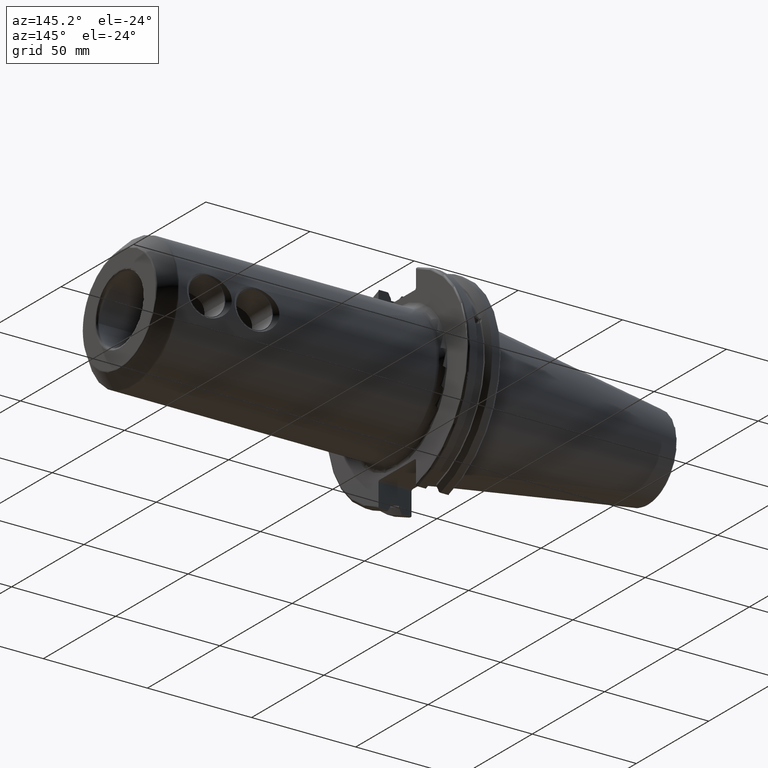
[diagram: clean part render]
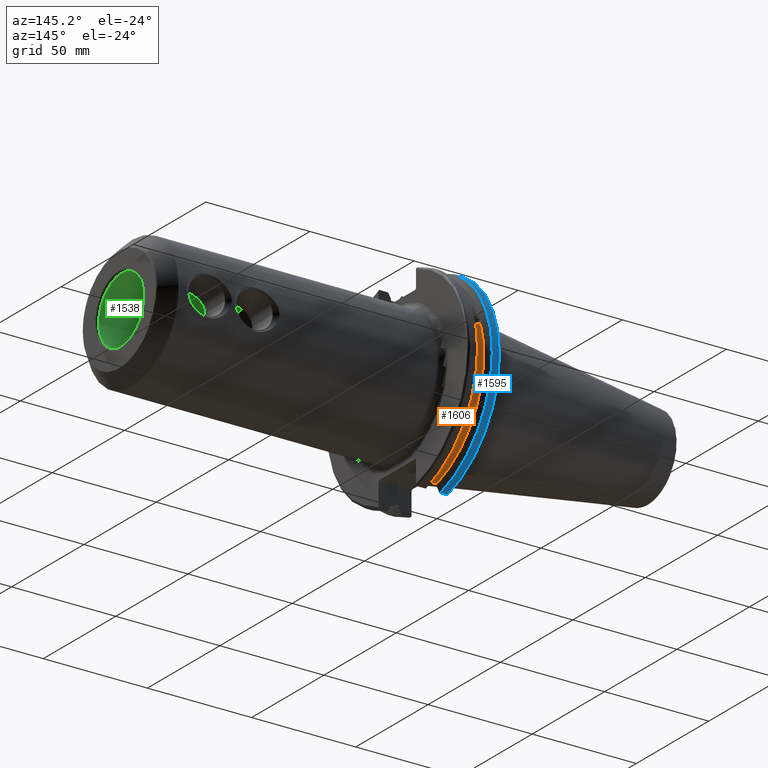
[diagram: same view with three faces highlighted in distinct colors, each labeled with its STEP entity id]
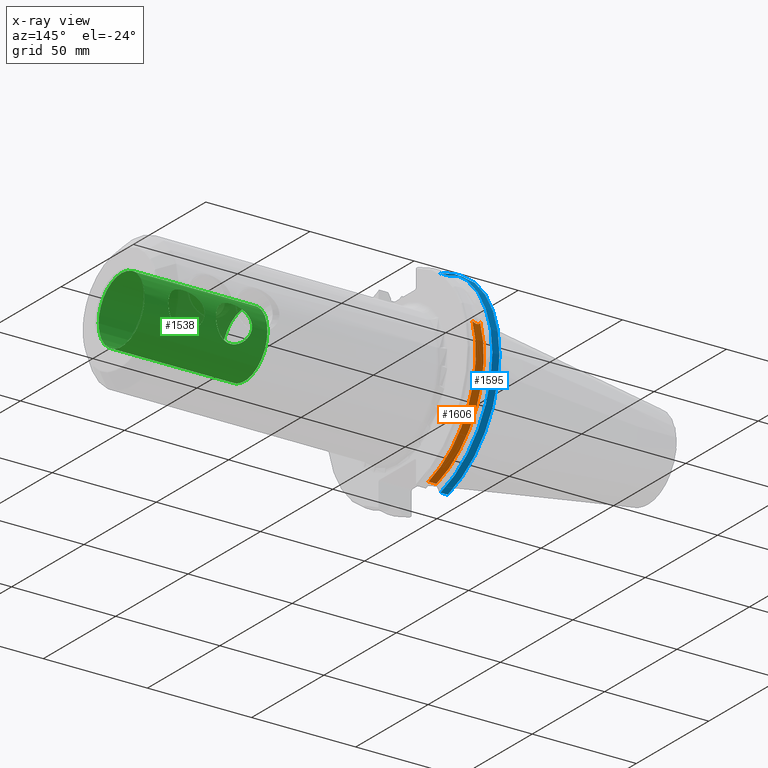
[diagram: x-ray of the same camera — body ghosted, the three highlighted faces saturated]
A machine part, auxiliary view with three faces highlighted in distinct colors.
The next image is the same camera in x-ray (body ghosted, the three faces saturated) — at least one of them is partly hidden behind the body in this view.
Their STEP definitions:

[orange] entity #1606 — the highlighted cylindrical surface (partial cylindrical patch) has radius 45.6435 mm, axis along (1, 0, 0).
#201=FACE_OUTER_BOUND('',#314,.T.);
#314=EDGE_LOOP('',(#1464,#1465,#1466,#1467));
#351=B_SPLINE_CURVE_WITH_KNOTS('',3,(#2911,#2912,#2913,#2914,#2915,#2916,
#2917,#2918,#2919,#2920,#2921,#2922,#2923,#2924),.UNSPECIFIED.,.F.,.F.,
(4,2,2,2,2,2,4),(0.401548312576693,0.474697095495631,0.553813286063442,
0.632929476631254,0.712045667199066,0.791161857766877,0.864310640685816),
 .UNSPECIFIED.);
#432=LINE('',#3113,#524);
#524=VECTOR('',#2089,10.);
#628=CIRCLE('',#1792,45.6435);
#630=CIRCLE('',#1796,45.6435);
#717=VERTEX_POINT('',#2908);
#718=VERTEX_POINT('',#2910);
#761=VERTEX_POINT('',#3110);
#762=VERTEX_POINT('',#3112);
#902=EDGE_CURVE('',#718,#717,#351,.T.);
#959=EDGE_CURVE('',#762,#761,#432,.T.);
#1020=EDGE_CURVE('',#761,#718,#628,.T.);
#1022=EDGE_CURVE('',#762,#717,#630,.T.);
#1464=ORIENTED_EDGE('',*,*,#902,.T.);
#1465=ORIENTED_EDGE('',*,*,#1022,.F.);
#1466=ORIENTED_EDGE('',*,*,#959,.T.);
#1467=ORIENTED_EDGE('',*,*,#1020,.T.);
#1523=CYLINDRICAL_SURFACE('',#1795,45.6435);
#1606=ADVANCED_FACE('',(#201),#1523,.T.);
#1792=AXIS2_PLACEMENT_3D('',#3314,#2207,#2208);
#1795=AXIS2_PLACEMENT_3D('',#3317,#2213,#2214);
#1796=AXIS2_PLACEMENT_3D('',#3318,#2215,#2216);
#2089=DIRECTION('',(-1.,0.,0.));
#2207=DIRECTION('center_axis',(1.,0.,0.));
#2208=DIRECTION('ref_axis',(0.,0.,-1.));
#2213=DIRECTION('center_axis',(1.,0.,0.));
#2214=DIRECTION('ref_axis',(0.,1.,0.));
#2215=DIRECTION('center_axis',(1.,0.,0.));
#2216=DIRECTION('ref_axis',(0.,0.,-1.));
#2908=CARTESIAN_POINT('',(13.0491,43.1779814500336,14.7983448449669));
#2910=CARTESIAN_POINT('',(9.21910000000001,43.1779814500336,14.7983448449669));
#2911=CARTESIAN_POINT('Ctrl Pts',(9.21910000000001,43.1779814500336,14.7983448449669));
#2912=CARTESIAN_POINT('Ctrl Pts',(9.32532177598177,43.2545173750974,14.5750315766731));
#2913=CARTESIAN_POINT('Ctrl Pts',(9.47680807557666,43.3223492818373,14.3712521044637));
#2914=CARTESIAN_POINT('Ctrl Pts',(9.83560503400179,43.4340904392251,14.0300988117073));
#2915=CARTESIAN_POINT('Ctrl Pts',(10.0717203280543,43.4832903960863,13.8760243976176));
#2916=CARTESIAN_POINT('Ctrl Pts',(10.5891059167872,43.54802519266,13.6715068146718));
#2917=CARTESIAN_POINT('Ctrl Pts',(10.870379364774,43.5636826100883,13.6211104428929));
#2918=CARTESIAN_POINT('Ctrl Pts',(11.397820635226,43.5636826100883,13.6211104428929));
#2919=CARTESIAN_POINT('Ctrl Pts',(11.6790940832128,43.54802519266,13.6715068146718));
#2920=CARTESIAN_POINT('Ctrl Pts',(12.1964796719457,43.4832903960863,13.8760243976176));
#2921=CARTESIAN_POINT('Ctrl Pts',(12.4325949659982,43.4340904392251,14.0300988117073));
#2922=CARTESIAN_POINT('Ctrl Pts',(12.7913919244233,43.3223492818373,14.3712521044637));
#2923=CARTESIAN_POINT('Ctrl Pts',(12.9428782240182,43.2545173750974,14.5750315766731));
#2924=CARTESIAN_POINT('Ctrl Pts',(13.0491,43.1779814500336,14.7983448449669));
#3110=CARTESIAN_POINT('',(9.2191,12.95,-43.7678716897452));
#3112=CARTESIAN_POINT('',(13.0491,12.95,-43.7678716897452));
#3113=CARTESIAN_POINT('',(11.1341,12.95,-43.7678716897452));
#3314=CARTESIAN_POINT('Origin',(9.2191,0.,0.));
#3317=CARTESIAN_POINT('Origin',(11.1341,0.,0.));
#3318=CARTESIAN_POINT('Origin',(13.0491,0.,0.));

[blue] entity #1595 — the highlighted cylindrical surface (partial cylindrical patch) has radius 49.2125 mm, axis along (1, 0, 0).
#190=FACE_OUTER_BOUND('',#303,.T.);
#303=EDGE_LOOP('',(#1413,#1414,#1415,#1416));
#445=LINE('',#3248,#537);
#456=LINE('',#3290,#548);
#537=VECTOR('',#2128,10.);
#548=VECTOR('',#2175,10.);
#616=CIRCLE('',#1758,49.2125);
#623=CIRCLE('',#1778,49.2125);
#779=VERTEX_POINT('',#3221);
#780=VERTEX_POINT('',#3230);
#781=VERTEX_POINT('',#3247);
#788=VERTEX_POINT('',#3289);
#988=EDGE_CURVE('',#779,#780,#616,.T.);
#991=EDGE_CURVE('',#780,#781,#445,.T.);
#1010=EDGE_CURVE('',#788,#779,#456,.T.);
#1011=EDGE_CURVE('',#781,#788,#623,.T.);
#1413=ORIENTED_EDGE('',*,*,#988,.F.);
#1414=ORIENTED_EDGE('',*,*,#1010,.F.);
#1415=ORIENTED_EDGE('',*,*,#1011,.F.);
#1416=ORIENTED_EDGE('',*,*,#991,.F.);
#1520=CYLINDRICAL_SURFACE('',#1777,49.2125);
#1595=ADVANCED_FACE('',(#190),#1520,.T.);
#1758=AXIS2_PLACEMENT_3D('',#3231,#2124,#2125);
#1777=AXIS2_PLACEMENT_3D('',#3288,#2173,#2174);
#1778=AXIS2_PLACEMENT_3D('',#3291,#2176,#2177);
#2124=DIRECTION('center_axis',(-1.,0.,0.));
#2125=DIRECTION('ref_axis',(0.,1.,-6.12323399573677E-17));
#2128=DIRECTION('',(1.,0.,0.));
#2173=DIRECTION('center_axis',(1.,0.,0.));
#2174=DIRECTION('ref_axis',(0.,1.,0.));
#2175=DIRECTION('',(-1.,0.,0.));
#2176=DIRECTION('center_axis',(1.,0.,0.));
#2177=DIRECTION('ref_axis',(0.,0.,-1.));
#3221=CARTESIAN_POINT('',(4.175,13.4317035994433,47.3440544806494));
#3230=CARTESIAN_POINT('',(4.175,13.4317035994433,-47.3440544806494));
#3231=CARTESIAN_POINT('Origin',(4.175,0.,0.));
#3247=CARTESIAN_POINT('',(7.60799096595127,13.4317035994433,-47.3440544806494));
#3248=CARTESIAN_POINT('',(5.39149548297564,13.4317035994433,-47.3440544806494));
#3288=CARTESIAN_POINT('Origin',(5.39149548297564,0.,0.));
#3289=CARTESIAN_POINT('',(7.60799096595127,13.4317035994433,47.3440544806494));
#3290=CARTESIAN_POINT('',(5.39149548297564,13.4317035994433,47.3440544806494));
#3291=CARTESIAN_POINT('Origin',(7.60799096595127,0.,0.));

[green] entity #1538 — the highlighted cylindrical surface (bore or boss wall) has radius 15.875 mm, axis along (1, 0, 0).
#61=FACE_BOUND('',#228,.T.);
#62=FACE_BOUND('',#229,.T.);
#133=FACE_OUTER_BOUND('',#227,.T.);
#227=EDGE_LOOP('',(#1087,#1088,#1089,#1090,#1091));
#228=EDGE_LOOP('',(#1092,#1093));
#229=EDGE_LOOP('',(#1094,#1095));
#325=B_SPLINE_CURVE_WITH_KNOTS('',3,(#2249,#2250,#2251,#2252,#2253,#2254,
#2255,#2256,#2257,#2258,#2259,#2260,#2261,#2262,#2263,#2264,#2265,#2266,
#2267,#2268,#2269,#2270,#2271,#2272,#2273,#2274),.UNSPECIFIED.,.F.,.F.,
(4,2,2,2,2,2,2,2,2,2,2,2,4),(0.,0.335135655520429,0.670271311040858,1.00403758708355,
1.33780386312625,1.67157013916894,2.00533641521164,2.34047207073207,2.6756077262525,
3.01074338177292,3.34587903729335,3.67964531333605,4.01341158937874),
 .UNSPECIFIED.);
#326=B_SPLINE_CURVE_WITH_KNOTS('',3,(#2275,#2276,#2277,#2278,#2279,#2280,
#2281,#2282,#2283,#2284),.UNSPECIFIED.,.F.,.F.,(4,2,2,2,4),(4.01341158937874,
4.34717786542144,4.68094414146413,5.01607979698456,5.35121545250499),
 .UNSPECIFIED.);
#329=B_SPLINE_CURVE_WITH_KNOTS('',3,(#2334,#2335,#2336,#2337,#2338,#2339,
#2340,#2341,#2342,#2343,#2344,#2345,#2346,#2347,#2348,#2349,#2350,#2351,
#2352,#2353,#2354,#2355,#2356,#2357,#2358,#2359),.UNSPECIFIED.,.F.,.F.,
(4,2,2,2,2,2,2,2,2,2,2,2,4),(0.,0.335135655520429,0.670271311040858,1.00403758708355,
1.33780386312625,1.67157013916894,2.00533641521164,2.34047207073207,2.6756077262525,
3.01074338177292,3.34587903729335,3.67964531333605,4.01341158937874),
 .UNSPECIFIED.);
#330=B_SPLINE_CURVE_WITH_KNOTS('',3,(#2360,#2361,#2362,#2363,#2364,#2365,
#2366,#2367,#2368,#2369),.UNSPECIFIED.,.F.,.F.,(4,2,2,2,4),(4.01341158937874,
4.34717786542144,4.68094414146413,5.01607979698456,5.35121545250499),
 .UNSPECIFIED.);
#377=LINE('',#2450,#469);
#469=VECTOR('',#1880,15.875);
#571=CIRCLE('',#1666,15.875);
#572=CIRCLE('',#1667,15.875);
#574=CIRCLE('',#1670,15.875);
#635=VERTEX_POINT('',#2246);
#636=VERTEX_POINT('',#2248);
#641=VERTEX_POINT('',#2331);
#642=VERTEX_POINT('',#2333);
#656=VERTEX_POINT('',#2443);
#657=VERTEX_POINT('',#2444);
#658=VERTEX_POINT('',#2449);
#796=EDGE_CURVE('',#636,#635,#325,.T.);
#797=EDGE_CURVE('',#635,#636,#326,.T.);
#804=EDGE_CURVE('',#642,#641,#329,.T.);
#805=EDGE_CURVE('',#641,#642,#330,.T.);
#824=EDGE_CURVE('',#656,#657,#571,.T.);
#825=EDGE_CURVE('',#657,#656,#572,.T.);
#827=EDGE_CURVE('',#657,#658,#377,.T.);
#828=EDGE_CURVE('',#658,#658,#574,.T.);
#1087=ORIENTED_EDGE('',*,*,#824,.F.);
#1088=ORIENTED_EDGE('',*,*,#825,.F.);
#1089=ORIENTED_EDGE('',*,*,#827,.T.);
#1090=ORIENTED_EDGE('',*,*,#828,.F.);
#1091=ORIENTED_EDGE('',*,*,#827,.F.);
#1092=ORIENTED_EDGE('',*,*,#796,.T.);
#1093=ORIENTED_EDGE('',*,*,#797,.T.);
#1094=ORIENTED_EDGE('',*,*,#804,.T.);
#1095=ORIENTED_EDGE('',*,*,#805,.T.);
#1502=CYLINDRICAL_SURFACE('',#1669,15.875);
#1538=ADVANCED_FACE('',(#133,#61,#62),#1502,.F.);
#1666=AXIS2_PLACEMENT_3D('',#2445,#1872,#1873);
#1667=AXIS2_PLACEMENT_3D('',#2446,#1874,#1875);
#1669=AXIS2_PLACEMENT_3D('',#2448,#1878,#1879);
#1670=AXIS2_PLACEMENT_3D('',#2451,#1881,#1882);
#1872=DIRECTION('center_axis',(-1.,0.,0.));
#1873=DIRECTION('ref_axis',(0.,-1.,1.83697019872103E-16));
#1874=DIRECTION('center_axis',(-1.,0.,0.));
#1875=DIRECTION('ref_axis',(0.,-1.,1.83697019872103E-16));
#1878=DIRECTION('center_axis',(1.,0.,0.));
#1879=DIRECTION('ref_axis',(0.,1.,0.));
#1880=DIRECTION('',(-1.,0.,0.));
#1881=DIRECTION('center_axis',(1.,0.,0.));
#1882=DIRECTION('ref_axis',(0.,0.,-1.));
#2246=CARTESIAN_POINT('',(99.7786,15.875,1.22424717969747E-15));
#2248=CARTESIAN_POINT('',(108.44,13.3039759109824,8.6614));
#2249=CARTESIAN_POINT('Ctrl Pts',(108.44,13.3039759109824,8.6614));
#2250=CARTESIAN_POINT('Ctrl Pts',(109.557118851735,13.3039759109824,8.6614));
#2251=CARTESIAN_POINT('Ctrl Pts',(110.726117993075,13.4596424228962,8.43319660129859));
#2252=CARTESIAN_POINT('Ctrl Pts',(112.849610528737,13.9778479980301,7.54324290825644));
#2253=CARTESIAN_POINT('Ctrl Pts',(113.807033956156,14.3292484464552,6.88203539298256));
#2254=CARTESIAN_POINT('Ctrl Pts',(115.318940210715,14.9614834588893,5.37012913842324));
#2255=CARTESIAN_POINT('Ctrl Pts',(115.982371816941,15.2884598474176,4.41173993002517));
#2256=CARTESIAN_POINT('Ctrl Pts',(116.874189012434,15.7475449872049,2.28369910750552));
#2257=CARTESIAN_POINT('Ctrl Pts',(117.1014,15.875,1.11255425347565));
#2258=CARTESIAN_POINT('Ctrl Pts',(117.1014,15.875,-1.11255425347565));
#2259=CARTESIAN_POINT('Ctrl Pts',(116.874189012434,15.7475449872049,-2.28369910750552));
#2260=CARTESIAN_POINT('Ctrl Pts',(115.982371816941,15.2884598474176,-4.41173993002517));
#2261=CARTESIAN_POINT('Ctrl Pts',(115.318940210715,14.9614834588893,-5.37012913842324));
#2262=CARTESIAN_POINT('Ctrl Pts',(113.807033956156,14.3292484464552,-6.88203539298257));
#2263=CARTESIAN_POINT('Ctrl Pts',(112.849610528737,13.9778479980301,-7.54324290825644));
#2264=CARTESIAN_POINT('Ctrl Pts',(110.726117993075,13.4596424228962,-8.43319660129859));
#2265=CARTESIAN_POINT('Ctrl Pts',(109.557118851735,13.3039759109824,-8.6614));
#2266=CARTESIAN_POINT('Ctrl Pts',(107.322881148265,13.3039759109824,-8.6614));
#2267=CARTESIAN_POINT('Ctrl Pts',(106.153882006925,13.4596424228962,-8.4331966012986));
#2268=CARTESIAN_POINT('Ctrl Pts',(104.030389471263,13.9778479980301,-7.54324290825644));
#2269=CARTESIAN_POINT('Ctrl Pts',(103.072966043844,14.3292484464552,-6.88203539298256));
#2270=CARTESIAN_POINT('Ctrl Pts',(101.561059789285,14.9614834588893,-5.37012913842324));
#2271=CARTESIAN_POINT('Ctrl Pts',(100.897628183059,15.2884598474176,-4.41173993002517));
#2272=CARTESIAN_POINT('Ctrl Pts',(100.005810987567,15.7475449872049,-2.28369910750552));
#2273=CARTESIAN_POINT('Ctrl Pts',(99.7786,15.875,-1.11255425347565));
#2274=CARTESIAN_POINT('Ctrl Pts',(99.7786,15.875,1.38777878078145E-15));
#2275=CARTESIAN_POINT('Ctrl Pts',(99.7786,15.875,1.94289029309402E-15));
#2276=CARTESIAN_POINT('Ctrl Pts',(99.7786,15.875,1.11255425347565));
#2277=CARTESIAN_POINT('Ctrl Pts',(100.005810987567,15.7475449872049,2.28369910750551));
#2278=CARTESIAN_POINT('Ctrl Pts',(100.897628183059,15.2884598474176,4.41173993002517));
#2279=CARTESIAN_POINT('Ctrl Pts',(101.561059789285,14.9614834588893,5.37012913842324));
#2280=CARTESIAN_POINT('Ctrl Pts',(103.072966043844,14.3292484464552,6.88203539298256));
#2281=CARTESIAN_POINT('Ctrl Pts',(104.030389471263,13.9778479980301,7.54324290825644));
#2282=CARTESIAN_POINT('Ctrl Pts',(106.153882006925,13.4596424228962,8.43319660129859));
#2283=CARTESIAN_POINT('Ctrl Pts',(107.322881148265,13.3039759109824,8.6614));
#2284=CARTESIAN_POINT('Ctrl Pts',(108.44,13.3039759109824,8.6614));
#2331=CARTESIAN_POINT('',(122.6386,15.875,3.16713747279149E-15));
#2333=CARTESIAN_POINT('',(131.3,13.3039759109824,8.6614));
#2334=CARTESIAN_POINT('Ctrl Pts',(131.3,13.3039759109824,8.6614));
#2335=CARTESIAN_POINT('Ctrl Pts',(132.417118851735,13.3039759109824,8.6614));
#2336=CARTESIAN_POINT('Ctrl Pts',(133.586117993075,13.4596424228962,8.43319660129858));
#2337=CARTESIAN_POINT('Ctrl Pts',(135.709610528737,13.9778479980301,7.54324290825644));
#2338=CARTESIAN_POINT('Ctrl Pts',(136.667033956156,14.3292484464552,6.88203539298256));
#2339=CARTESIAN_POINT('Ctrl Pts',(138.178940210715,14.9614834588893,5.37012913842324));
#2340=CARTESIAN_POINT('Ctrl Pts',(138.842371816941,15.2884598474176,4.41173993002518));
#2341=CARTESIAN_POINT('Ctrl Pts',(139.734189012434,15.7475449872049,2.28369910750552));
#2342=CARTESIAN_POINT('Ctrl Pts',(139.9614,15.875,1.11255425347565));
#2343=CARTESIAN_POINT('Ctrl Pts',(139.9614,15.875,-1.11255425347565));
#2344=CARTESIAN_POINT('Ctrl Pts',(139.734189012434,15.7475449872049,-2.28369910750553));
#2345=CARTESIAN_POINT('Ctrl Pts',(138.842371816941,15.2884598474176,-4.41173993002518));
#2346=CARTESIAN_POINT('Ctrl Pts',(138.178940210715,14.9614834588893,-5.37012913842324));
#2347=CARTESIAN_POINT('Ctrl Pts',(136.667033956156,14.3292484464552,-6.88203539298257));
#2348=CARTESIAN_POINT('Ctrl Pts',(135.709610528737,13.9778479980301,-7.54324290825645));
#2349=CARTESIAN_POINT('Ctrl Pts',(133.586117993075,13.4596424228962,-8.43319660129859));
#2350=CARTESIAN_POINT('Ctrl Pts',(132.417118851735,13.3039759109824,-8.6614));
#2351=CARTESIAN_POINT('Ctrl Pts',(130.182881148265,13.3039759109824,-8.6614));
#2352=CARTESIAN_POINT('Ctrl Pts',(129.013882006925,13.4596424228962,-8.43319660129858));
#2353=CARTESIAN_POINT('Ctrl Pts',(126.890389471263,13.9778479980301,-7.54324290825644));
#2354=CARTESIAN_POINT('Ctrl Pts',(125.932966043844,14.3292484464552,-6.88203539298256));
#2355=CARTESIAN_POINT('Ctrl Pts',(124.421059789285,14.9614834588893,-5.37012913842324));
#2356=CARTESIAN_POINT('Ctrl Pts',(123.757628183059,15.2884598474176,-4.41173993002518));
#2357=CARTESIAN_POINT('Ctrl Pts',(122.865810987567,15.7475449872049,-2.28369910750552));
#2358=CARTESIAN_POINT('Ctrl Pts',(122.6386,15.875,-1.11255425347565));
#2359=CARTESIAN_POINT('Ctrl Pts',(122.6386,15.875,1.11022302462516E-15));
#2360=CARTESIAN_POINT('Ctrl Pts',(122.6386,15.875,8.32667268468867E-16));
#2361=CARTESIAN_POINT('Ctrl Pts',(122.6386,15.875,1.11255425347565));
#2362=CARTESIAN_POINT('Ctrl Pts',(122.865810987567,15.7475449872049,2.28369910750552));
#2363=CARTESIAN_POINT('Ctrl Pts',(123.757628183059,15.2884598474176,4.41173993002518));
#2364=CARTESIAN_POINT('Ctrl Pts',(124.421059789285,14.9614834588893,5.37012913842324));
#2365=CARTESIAN_POINT('Ctrl Pts',(125.932966043844,14.3292484464552,6.88203539298256));
#2366=CARTESIAN_POINT('Ctrl Pts',(126.890389471263,13.9778479980301,7.54324290825644));
#2367=CARTESIAN_POINT('Ctrl Pts',(129.013882006925,13.4596424228962,8.43319660129858));
#2368=CARTESIAN_POINT('Ctrl Pts',(130.182881148265,13.3039759109824,8.6614));
#2369=CARTESIAN_POINT('Ctrl Pts',(131.3,13.3039759109824,8.6614));
#2443=CARTESIAN_POINT('',(151.4,-1.94412679364642E-15,15.875));
#2444=CARTESIAN_POINT('',(151.4,-15.875,-1.94412679364642E-15));
#2445=CARTESIAN_POINT('Origin',(151.4,0.,0.));
#2446=CARTESIAN_POINT('Origin',(151.4,0.,0.));
#2448=CARTESIAN_POINT('Origin',(122.4,0.,0.));
#2449=CARTESIAN_POINT('',(92.4,-15.875,-1.94412679364642E-15));
#2450=CARTESIAN_POINT('',(122.4,-15.875,-1.94412679364642E-15));
#2451=CARTESIAN_POINT('Origin',(92.4,0.,0.));